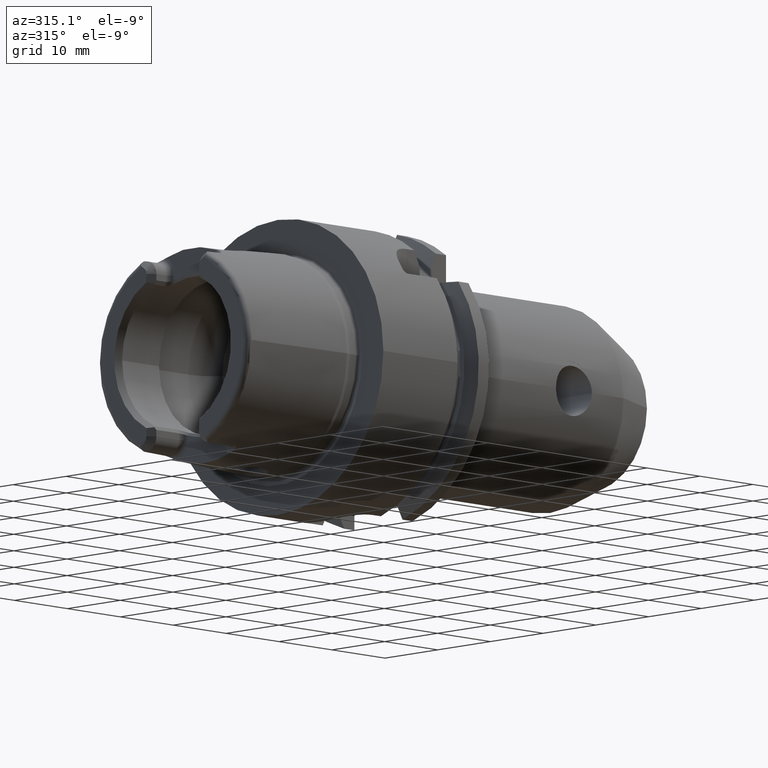
[diagram: clean part render]
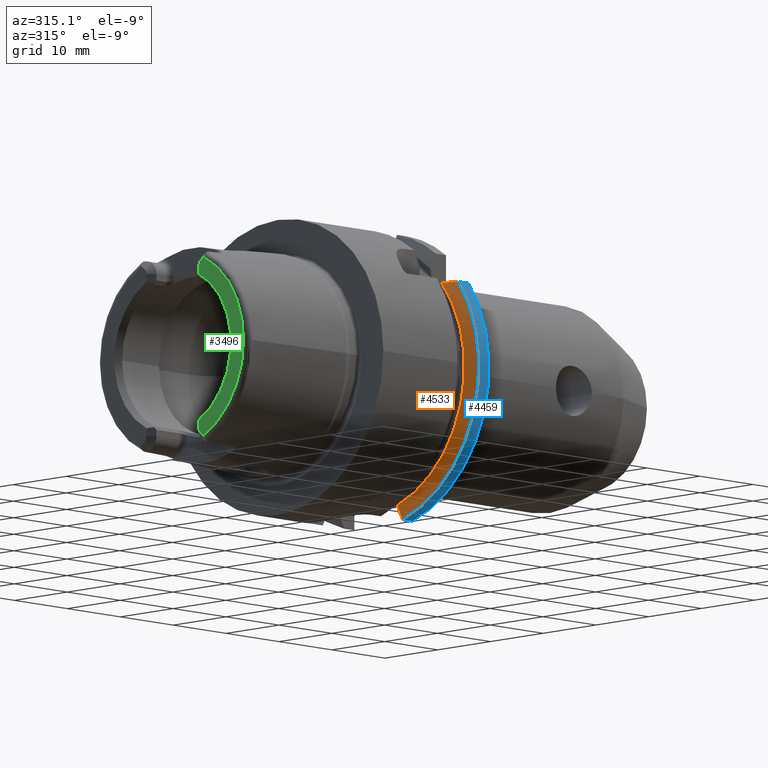
[diagram: same view with three faces highlighted in distinct colors, each labeled with its STEP entity id]
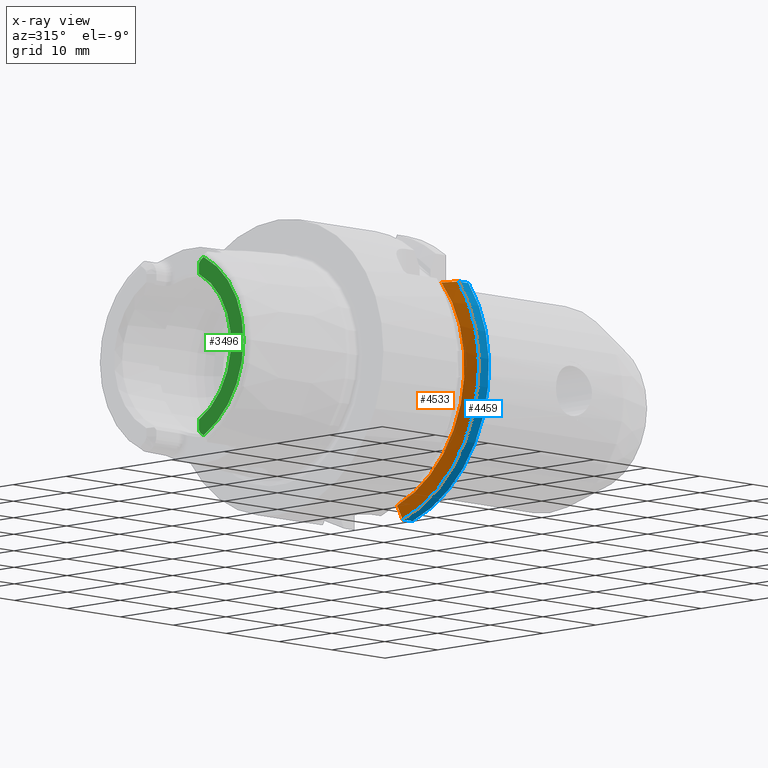
[diagram: x-ray of the same camera — body ghosted, the three highlighted faces saturated]
A machine part, auxiliary view with three faces highlighted in distinct colors.
The next image is the same camera in x-ray (body ghosted, the three faces saturated) — at least one of them is partly hidden behind the body in this view.
Their STEP definitions:

[orange] entity #4533 — the highlighted conical surface has half-angle 60 deg.
#1012=CARTESIAN_POINT('',(1.803515969889E1,0.E0,0.E0));
#1013=DIRECTION('',(-1.E0,0.E0,0.E0));
#1014=DIRECTION('',(0.E0,-2.75875E-1,-9.611935207725E-1));
#1015=AXIS2_PLACEMENT_3D('',#1012,#1013,#1014);
#1137=CARTESIAN_POINT('',(1.70375E1,0.E0,0.E0));
#1138=DIRECTION('',(-1.E0,0.E0,0.E0));
#1139=DIRECTION('',(0.E0,-3.019647099833E-1,-9.533191039336E-1));
#1140=AXIS2_PLACEMENT_3D('',#1137,#1138,#1139);
#1874=CARTESIAN_POINT('',(1.70375E1,-1.390839973320E1,1.185E1));
#1875=CARTESIAN_POINT('',(1.713828706608E1,-1.413773688651E1,1.185E1));
#1876=CARTESIAN_POINT('',(1.734649495352E1,-1.460672643476E1,1.185E1));
#1877=CARTESIAN_POINT('',(1.767854805567E1,-1.534021584423E1,1.185E1));
#1878=CARTESIAN_POINT('',(1.791397076477E1,-1.585084160911E1,1.185E1));
#1879=CARTESIAN_POINT('',(1.803515969889E1,-1.611140900108E1,1.185E1));
#2034=CARTESIAN_POINT('',(1.70375E1,-5.5175E0,-1.741904925329E1));
#2035=CARTESIAN_POINT('',(1.714394007443E1,-5.5175E0,-1.761243635328E1));
#2036=CARTESIAN_POINT('',(1.735976434895E1,-5.5175E0,-1.800397218698E1));
#2037=CARTESIAN_POINT('',(1.769224491069E1,-5.5175E0,-1.860543234989E1));
#2038=CARTESIAN_POINT('',(1.791986940604E1,-5.5175E0,-1.901611969665E1));
#2039=CARTESIAN_POINT('',(1.803515969889E1,-5.5175E0,-1.922387041545E1));
#3071=CARTESIAN_POINT('',(1.70375E1,-5.5175E0,-1.741904925329E1));
#3073=VERTEX_POINT('',#3071);
#3074=VERTEX_POINT('',#2039);
#3127=CARTESIAN_POINT('',(1.70375E1,-1.390839973320E1,1.185E1));
#3128=VERTEX_POINT('',#3127);
#3129=VERTEX_POINT('',#1879);
#4519=CARTESIAN_POINT('',(1.753632984945E1,0.E0,0.E0));
#4520=DIRECTION('',(1.E0,0.E0,0.E0));
#4521=DIRECTION('',(0.E0,-1.E0,0.E0));
#4522=AXIS2_PLACEMENT_3D('',#4519,#4520,#4521);
#4523=CONICAL_SURFACE('',#4522,1.913600135643E1,6.E1);
#4524=ORIENTED_EDGE('',*,*,#4453,.F.);
#4526=ORIENTED_EDGE('',*,*,#4525,.F.);
#4528=ORIENTED_EDGE('',*,*,#4527,.T.);
#4530=ORIENTED_EDGE('',*,*,#4529,.T.);
#4531=EDGE_LOOP('',(#4524,#4526,#4528,#4530));
#4532=FACE_OUTER_BOUND('',#4531,.F.);
#4533=ADVANCED_FACE('',(#4532),#4523,.T.);
#1016=CIRCLE('',#1015,2.E1);
#1141=CIRCLE('',#1140,1.827200271285E1);
#1880=B_SPLINE_CURVE_WITH_KNOTS('',3,(#1874,#1875,#1876,#1877,#1878,#1879),
.UNSPECIFIED.,.F.,.F.,(4,1,1,4),(0.E0,3.333333333333E-1,6.666666666667E-1,1.E0),
.UNSPECIFIED.);
#2040=B_SPLINE_CURVE_WITH_KNOTS('',3,(#2034,#2035,#2036,#2037,#2038,#2039),
.UNSPECIFIED.,.F.,.F.,(4,1,1,4),(0.E0,3.333333333333E-1,6.666666666667E-1,1.E0),
.UNSPECIFIED.);
#4453=EDGE_CURVE('',#3074,#3129,#1016,.T.);
#4525=EDGE_CURVE('',#3073,#3074,#2040,.T.);
#4527=EDGE_CURVE('',#3073,#3128,#1141,.T.);
#4529=EDGE_CURVE('',#3128,#3129,#1880,.T.);

[blue] entity #4459 — the highlighted cylindrical surface (partial cylindrical patch) has radius 20 mm, axis along (1, 0, 0).
#1003=CARTESIAN_POINT('',(1.995E1,0.E0,0.E0));
#1004=DIRECTION('',(1.E0,0.E0,0.E0));
#1005=DIRECTION('',(0.E0,-8.055704500539E-1,5.925E-1));
#1006=AXIS2_PLACEMENT_3D('',#1003,#1004,#1005);
#1008=DIRECTION('',(1.E0,0.E0,0.E0));
#1009=VECTOR('',#1008,1.914840301107E0);
#1010=CARTESIAN_POINT('',(1.803515969889E1,-5.5175E0,-1.922387041545E1));
#1011=LINE('',#1010,#1009);
#1012=CARTESIAN_POINT('',(1.803515969889E1,0.E0,0.E0));
#1013=DIRECTION('',(-1.E0,0.E0,0.E0));
#1014=DIRECTION('',(0.E0,-2.75875E-1,-9.611935207725E-1));
#1015=AXIS2_PLACEMENT_3D('',#1012,#1013,#1014);
#1017=DIRECTION('',(1.E0,0.E0,0.E0));
#1018=VECTOR('',#1017,1.914840301107E0);
#1019=CARTESIAN_POINT('',(1.803515969889E1,-1.611140900108E1,1.185E1));
#1020=LINE('',#1019,#1018);
#1879=CARTESIAN_POINT('',(1.803515969889E1,-1.611140900108E1,1.185E1));
#2039=CARTESIAN_POINT('',(1.803515969889E1,-5.5175E0,-1.922387041545E1));
#3074=VERTEX_POINT('',#2039);
#3129=VERTEX_POINT('',#1879);
#3231=CARTESIAN_POINT('',(1.995E1,-1.611140900108E1,1.185E1));
#3232=VERTEX_POINT('',#3231);
#3273=CARTESIAN_POINT('',(1.995E1,-5.5175E0,-1.922387041545E1));
#3274=VERTEX_POINT('',#3273);
#4444=CARTESIAN_POINT('',(-2.18925E1,0.E0,0.E0));
#4445=DIRECTION('',(1.E0,0.E0,0.E0));
#4446=DIRECTION('',(0.E0,-1.E0,0.E0));
#4447=AXIS2_PLACEMENT_3D('',#4444,#4445,#4446);
#4448=CYLINDRICAL_SURFACE('',#4447,2.E1);
#4450=ORIENTED_EDGE('',*,*,#4449,.T.);
#4452=ORIENTED_EDGE('',*,*,#4451,.F.);
#4454=ORIENTED_EDGE('',*,*,#4453,.T.);
#4456=ORIENTED_EDGE('',*,*,#4455,.T.);
#4457=EDGE_LOOP('',(#4450,#4452,#4454,#4456));
#4458=FACE_OUTER_BOUND('',#4457,.F.);
#4459=ADVANCED_FACE('',(#4458),#4448,.T.);
#1007=CIRCLE('',#1006,2.E1);
#1016=CIRCLE('',#1015,2.E1);
#4449=EDGE_CURVE('',#3232,#3274,#1007,.T.);
#4451=EDGE_CURVE('',#3074,#3274,#1011,.T.);
#4453=EDGE_CURVE('',#3074,#3129,#1016,.T.);
#4455=EDGE_CURVE('',#3129,#3232,#1020,.T.);

[green] entity #3496 — the highlighted planar face has unit normal (1, 0, 0).
#110=DIRECTION('',(0.E0,0.E0,-1.E0));
#111=VECTOR('',#110,1.111480217980E0);
#112=CARTESIAN_POINT('',(-1.99E1,-4.975E0,-9.888519782020E0));
#113=LINE('',#112,#111);
#114=DIRECTION('',(0.E0,0.E0,1.E0));
#115=VECTOR('',#114,1.111480217980E0);
#116=CARTESIAN_POINT('',(-1.99E1,-4.975E0,9.888519782020E0));
#117=LINE('',#116,#115);
#118=CARTESIAN_POINT('',(-1.99E1,-5.905E0,1.1E1));
#119=DIRECTION('',(1.E0,0.E0,0.E0));
#120=DIRECTION('',(0.E0,1.E0,0.E0));
#121=AXIS2_PLACEMENT_3D('',#118,#119,#120);
#123=DIRECTION('',(0.E0,8.225096545347E-1,-5.687511478646E-1));
#124=VECTOR('',#123,5.907345359343E-1);
#125=CARTESIAN_POINT('',(-1.99E1,-5.861946291559E0,1.210091492411E1));
#126=LINE('',#125,#124);
#127=DIRECTION('',(0.E0,8.225096545347E-1,5.687511478646E-1));
#128=VECTOR('',#127,5.907345359343E-1);
#129=CARTESIAN_POINT('',(-1.99E1,-5.861946291559E0,-1.210091492411E1));
#130=LINE('',#129,#128);
#131=CARTESIAN_POINT('',(-1.99E1,-5.905E0,-1.1E1));
#132=DIRECTION('',(-1.E0,0.E0,0.E0));
#133=DIRECTION('',(0.E0,1.E0,0.E0));
#134=AXIS2_PLACEMENT_3D('',#131,#132,#133);
#205=CARTESIAN_POINT('',(-1.99E1,0.E0,0.E0));
#206=DIRECTION('',(1.E0,0.E0,0.E0));
#207=DIRECTION('',(0.E0,-4.494338271971E-1,8.933136263211E-1));
#208=AXIS2_PLACEMENT_3D('',#205,#206,#207);
#358=CARTESIAN_POINT('',(-1.99E1,0.E0,0.E0));
#359=DIRECTION('',(-1.E0,0.E0,0.E0));
#360=DIRECTION('',(0.E0,-4.359625258411E-1,-8.999648193470E-1));
#361=AXIS2_PLACEMENT_3D('',#358,#359,#360);
#2986=CARTESIAN_POINT('',(-1.99E1,-4.975E0,9.888519782020E0));
#2987=CARTESIAN_POINT('',(-1.99E1,-4.975E0,1.1E1));
#2988=VERTEX_POINT('',#2986);
#2989=VERTEX_POINT('',#2987);
#2990=CARTESIAN_POINT('',(-1.99E1,-5.376061432486E0,1.176493397872E1));
#2991=VERTEX_POINT('',#2990);
#2992=CARTESIAN_POINT('',(-1.99E1,-5.861946291559E0,1.210091492411E1));
#2993=VERTEX_POINT('',#2992);
#3018=CARTESIAN_POINT('',(-1.99E1,-4.975E0,-9.888519782020E0));
#3019=CARTESIAN_POINT('',(-1.99E1,-4.975E0,-1.1E1));
#3020=VERTEX_POINT('',#3018);
#3021=VERTEX_POINT('',#3019);
#3022=CARTESIAN_POINT('',(-1.99E1,-5.376061432486E0,-1.176493397872E1));
#3023=VERTEX_POINT('',#3022);
#3024=CARTESIAN_POINT('',(-1.99E1,-5.861946291559E0,-1.210091492411E1));
#3025=VERTEX_POINT('',#3024);
#3474=CARTESIAN_POINT('',(-1.99E1,0.E0,0.E0));
#3475=DIRECTION('',(1.E0,0.E0,0.E0));
#3476=DIRECTION('',(0.E0,-1.E0,0.E0));
#3477=AXIS2_PLACEMENT_3D('',#3474,#3475,#3476);
#3478=PLANE('',#3477);
#3480=ORIENTED_EDGE('',*,*,#3479,.F.);
#3482=ORIENTED_EDGE('',*,*,#3481,.F.);
#3484=ORIENTED_EDGE('',*,*,#3483,.T.);
#3486=ORIENTED_EDGE('',*,*,#3485,.T.);
#3487=ORIENTED_EDGE('',*,*,#3438,.F.);
#3489=ORIENTED_EDGE('',*,*,#3488,.F.);
#3491=ORIENTED_EDGE('',*,*,#3490,.T.);
#3493=ORIENTED_EDGE('',*,*,#3492,.F.);
#3494=EDGE_LOOP('',(#3480,#3482,#3484,#3486,#3487,#3489,#3491,#3493));
#3495=FACE_OUTER_BOUND('',#3494,.F.);
#3496=ADVANCED_FACE('',(#3495),#3478,.F.);
#122=CIRCLE('',#121,9.3E-1);
#135=CIRCLE('',#134,9.3E-1);
#209=CIRCLE('',#208,1.106948275573E1);
#362=CIRCLE('',#361,1.344598662523E1);
#3438=EDGE_CURVE('',#2993,#2991,#126,.T.);
#3479=EDGE_CURVE('',#3020,#3021,#113,.T.);
#3481=EDGE_CURVE('',#2988,#3020,#209,.T.);
#3483=EDGE_CURVE('',#2988,#2989,#117,.T.);
#3485=EDGE_CURVE('',#2989,#2991,#122,.T.);
#3488=EDGE_CURVE('',#3025,#2993,#362,.T.);
#3490=EDGE_CURVE('',#3025,#3023,#130,.T.);
#3492=EDGE_CURVE('',#3021,#3023,#135,.T.);